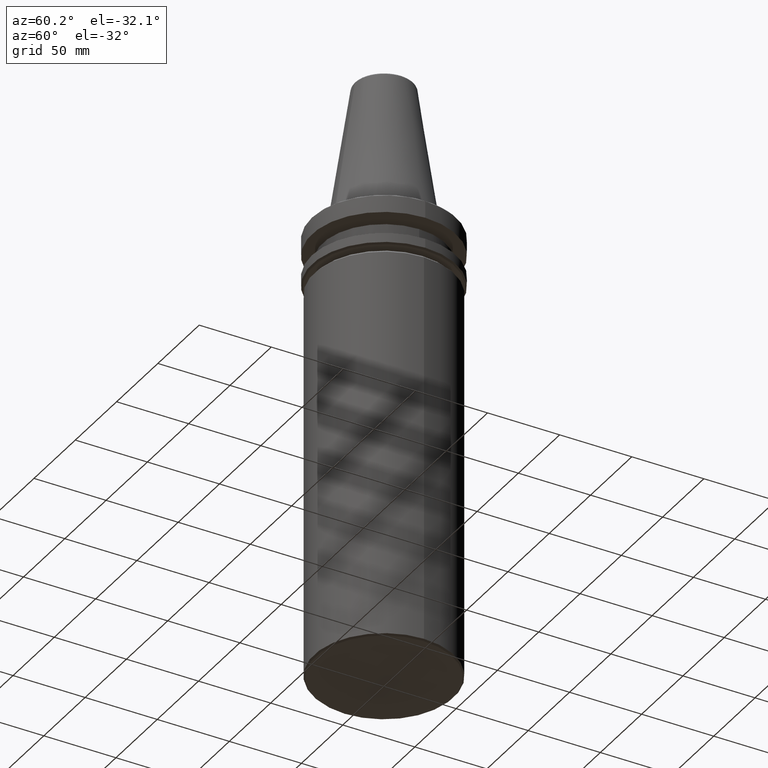
[diagram: clean part render]
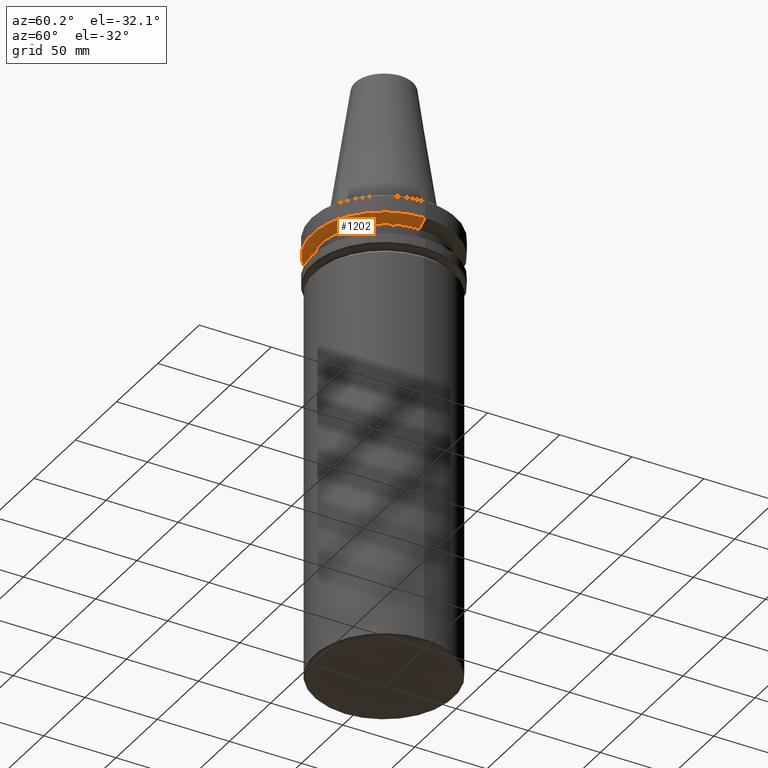
[diagram: same view with one face highlighted and labeled with its STEP entity id]
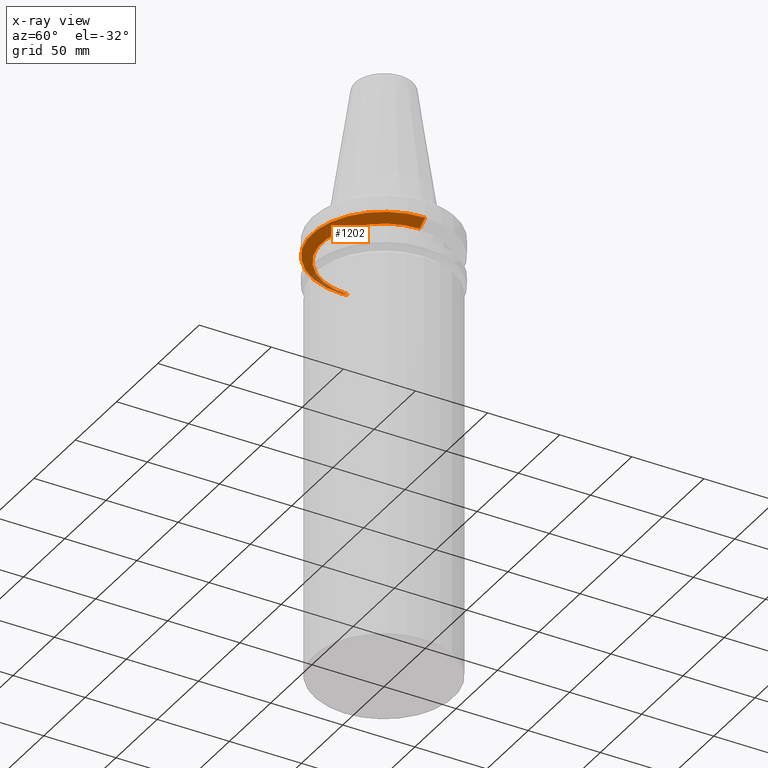
[diagram: x-ray of the same camera — body ghosted, the highlighted face saturated]
A machine part, auxiliary view. The second image highlights one B-rep face of the part: STEP entity #1202.
The next image is the same camera in x-ray: the body ghosted, the highlighted face saturated — about 6% of this face is hidden behind the body in this view.
In plain terms, the highlighted conical surface has half-angle 60 deg.
Its self-contained STEP definition (entity closure, byte-faithful):
#2 = CARTESIAN_POINT ( 'NONE',  ( -43.07217782649104300, 5.699027233244276800E-015, -19.70000000000000600 ) ) ;
#3 = AXIS2_PLACEMENT_3D ( 'NONE', #1242, #616, #44 ) ;
#6 = EDGE_CURVE ( 'NONE', #91, #474, #1113, .T. ) ;
#18 = ORIENTED_EDGE ( 'NONE', *, *, #1166, .F. ) ;
#33 = DIRECTION ( 'NONE',  ( -0.0000000000000000000, -0.0000000000000000000, -1.000000000000000000 ) ) ;
#44 = DIRECTION ( 'NONE',  ( 1.000000000000000000, 0.0000000000000000000, 0.0000000000000000000 ) ) ;
#74 = LINE ( 'NONE', #521, #793 ) ;
#91 = VERTEX_POINT ( 'NONE', #523 ) ;
#139 = CARTESIAN_POINT ( 'NONE',  ( -50.00000000000000000, 6.123233995736766100E-015, -15.70022000322675400 ) ) ;
#192 = CARTESIAN_POINT ( 'NONE',  ( 43.07217782649104300, 0.0000000000000000000, -19.70000000000000600 ) ) ;
#228 = AXIS2_PLACEMENT_3D ( 'NONE', #653, #33, #684 ) ;
#287 = VERTEX_POINT ( 'NONE', #192 ) ;
#297 = DIRECTION ( 'NONE',  ( 0.8660254037844388200, 0.0000000000000000000, 0.4999999999999997200 ) ) ;
#310 = ORIENTED_EDGE ( 'NONE', *, *, #1114, .T. ) ;
#328 = CARTESIAN_POINT ( 'NONE',  ( 0.0000000000000000000, 0.0000000000000000000, -15.70022000322675400 ) ) ;
#384 = AXIS2_PLACEMENT_3D ( 'NONE', #328, #919, #421 ) ;
#421 = DIRECTION ( 'NONE',  ( 1.000000000000000000, 0.0000000000000000000, 0.0000000000000000000 ) ) ;
#449 = VECTOR ( 'NONE', #297, 1000.000000000000000 ) ;
#474 = VERTEX_POINT ( 'NONE', #139 ) ;
#479 = CONICAL_SURFACE ( 'NONE', #384, 50.00000000000000000, 1.047197551196598100 ) ;
#480 = EDGE_LOOP ( 'NONE', ( #18, #874, #310, #804 ) ) ;
#521 = CARTESIAN_POINT ( 'NONE',  ( -50.00000000000000000, 6.123233995736766100E-015, -15.70022000322675400 ) ) ;
#523 = CARTESIAN_POINT ( 'NONE',  ( 50.00000000000000000, 0.0000000000000000000, -15.70022000322675400 ) ) ;
#539 = FACE_OUTER_BOUND ( 'NONE', #480, .T. ) ;
#583 = CARTESIAN_POINT ( 'NONE',  ( 50.00000000000000000, 0.0000000000000000000, -15.70022000322675400 ) ) ;
#615 = LINE ( 'NONE', #583, #449 ) ;
#616 = DIRECTION ( 'NONE',  ( 0.0000000000000000000, -0.0000000000000000000, 1.000000000000000000 ) ) ;
#653 = CARTESIAN_POINT ( 'NONE',  ( 0.0000000000000000000, 0.0000000000000000000, -15.70022000322675400 ) ) ;
#684 = DIRECTION ( 'NONE',  ( 1.000000000000000000, 0.0000000000000000000, 0.0000000000000000000 ) ) ;
#754 = VERTEX_POINT ( 'NONE', #2 ) ;
#793 = VECTOR ( 'NONE', #917, 1000.000000000000000 ) ;
#804 = ORIENTED_EDGE ( 'NONE', *, *, #6, .T. ) ;
#874 = ORIENTED_EDGE ( 'NONE', *, *, #1178, .T. ) ;
#917 = DIRECTION ( 'NONE',  ( -0.8660254037844388200, 1.060575238724907200E-016, 0.4999999999999997200 ) ) ;
#919 = DIRECTION ( 'NONE',  ( 0.0000000000000000000, -0.0000000000000000000, 1.000000000000000000 ) ) ;
#1113 = CIRCLE ( 'NONE', #228, 50.00000000000000000 ) ;
#1114 = EDGE_CURVE ( 'NONE', #287, #91, #615, .T. ) ;
#1166 = EDGE_CURVE ( 'NONE', #754, #474, #74, .T. ) ;
#1178 = EDGE_CURVE ( 'NONE', #754, #287, #1188, .T. ) ;
#1188 = CIRCLE ( 'NONE', #3, 43.07217782649104300 ) ;
#1202 = ADVANCED_FACE ( 'NONE', ( #539 ), #479, .T. ) ;
#1242 = CARTESIAN_POINT ( 'NONE',  ( 0.0000000000000000000, 0.0000000000000000000, -19.70000000000000600 ) ) ;